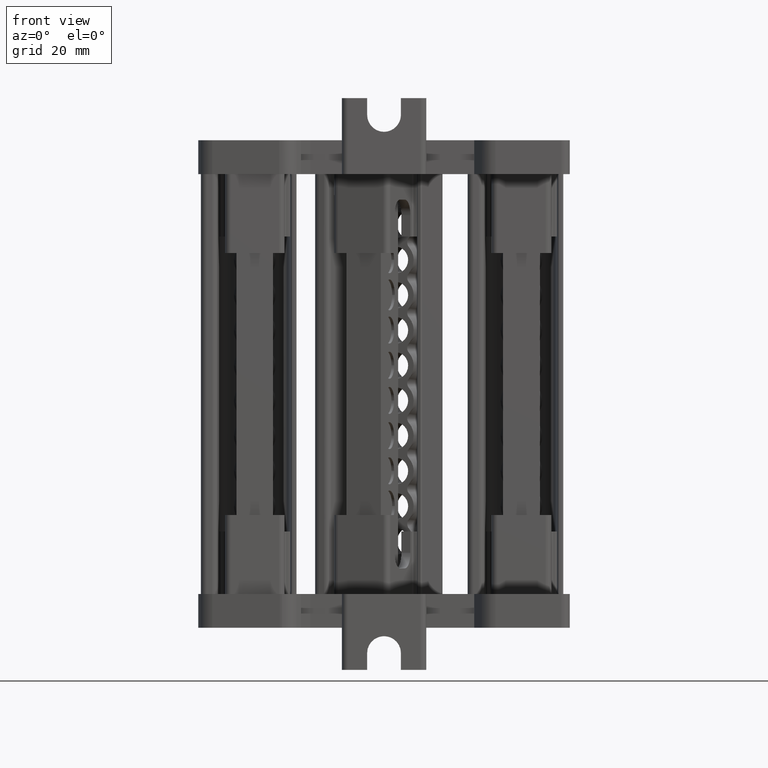
[diagram: clean part render]
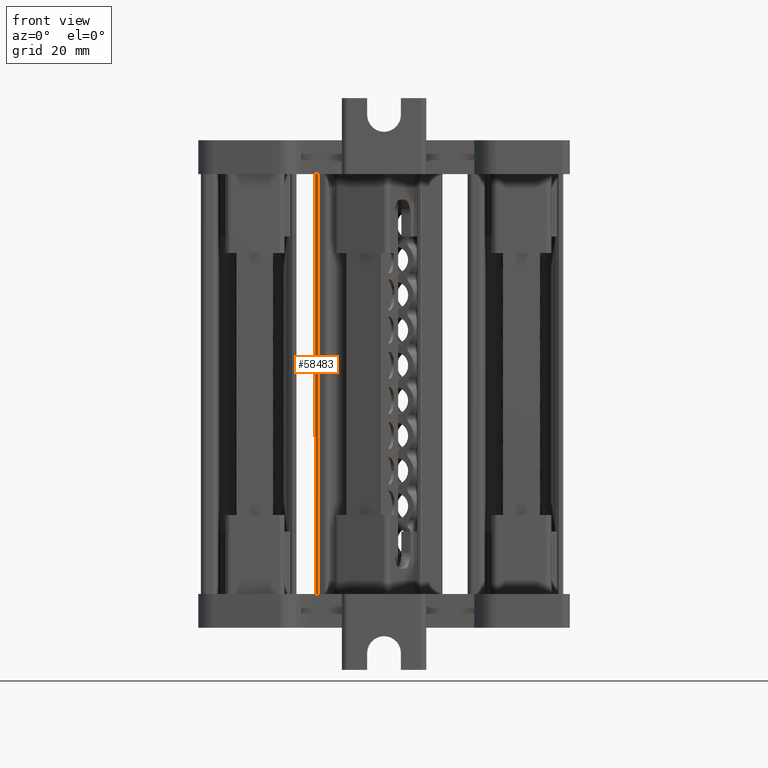
[diagram: same view with one face highlighted and labeled with its STEP entity id]
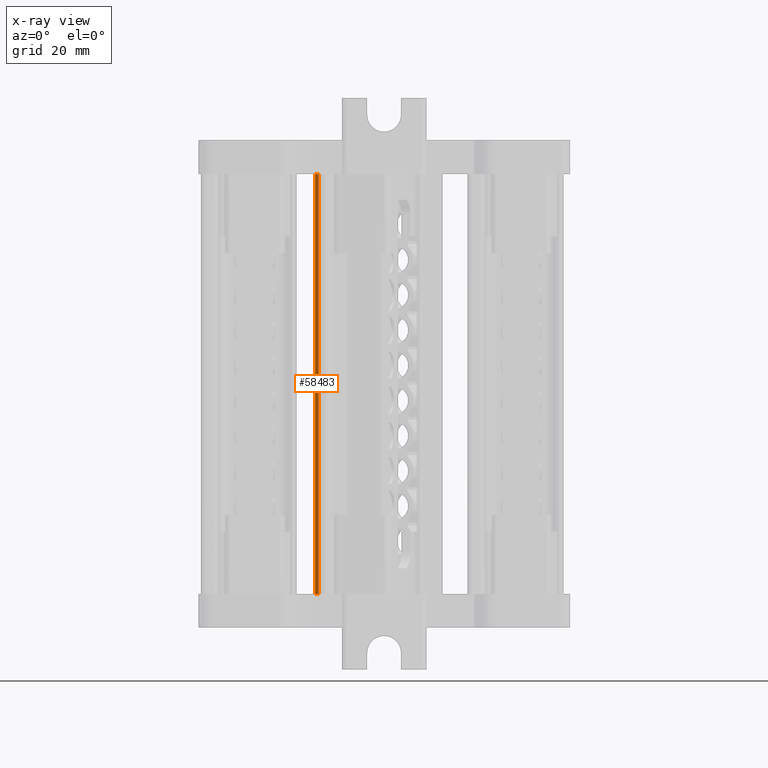
[diagram: x-ray of the same camera — body ghosted, the highlighted face saturated]
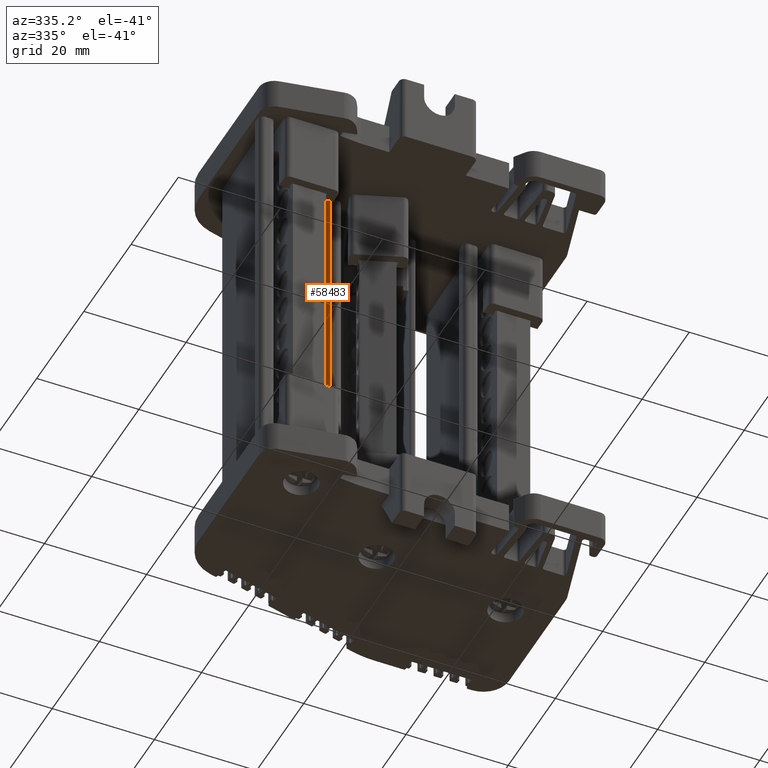
[diagram: same view with one face highlighted and labeled with its STEP entity id]
A machine part, front view. The second image highlights one B-rep face of the part: STEP entity #58483.
The next image is the same camera in x-ray: the body ghosted, the highlighted face saturated — about 0% of this face is hidden behind the body in this view.
A second angle (auxiliary view) of the same face is appended — the face is thin or edge-on in the first view.
In plain terms, the highlighted cylindrical surface (edge-blend (fillet) strip) has radius 1.0034 mm, axis along (-0, 0, -1).
Its self-contained STEP definition (entity closure, byte-faithful):
#11545 = CARTESIAN_POINT ( 'NONE',  ( -310.0798845158633400, 209.5913645827042700, 25.71293318655215600 ) ) ;
#11548 = CARTESIAN_POINT ( 'NONE',  ( -310.0798845158626600, 209.5913645827038700, 100.3119239351457400 ) ) ;
#14079 = CARTESIAN_POINT ( 'NONE',  ( -309.4802019671770900, 208.3053445662860400, 100.3119239351457400 ) ) ;
#14162 = CARTESIAN_POINT ( 'NONE',  ( -309.4802019671770900, 208.3053445662865800, 25.71293318655213500 ) ) ;
#27802 = AXIS2_PLACEMENT_3D ( 'NONE', #74199, #74168, #74171 ) ;
#31523 = B_SPLINE_CURVE_WITH_KNOTS ( 'NONE', 3,
 ( #89264, #89270, #89289, #89290, #89259, #89291 ),
 .UNSPECIFIED., .F., .F.,
 ( 4, 2, 4 ),
 ( 0.0000000000000000000, 0.5000000000000000000, 1.000000000000000000 ),
 .UNSPECIFIED. ) ;
#31540 = B_SPLINE_CURVE_WITH_KNOTS ( 'NONE', 3,
 ( #86636, #86607, #86663, #86689, #86674, #86693 ),
 .UNSPECIFIED., .F., .F.,
 ( 4, 2, 4 ),
 ( 0.0000000000000000000, 0.5000000000000000000, 1.000000000000000000 ),
 .UNSPECIFIED. ) ;
#32584 = VECTOR ( 'NONE', #89250, 1000.000000000000000 ) ;
#37991 = VECTOR ( 'NONE', #67764, 1000.000000000000000 ) ;
#44174 = EDGE_CURVE ( 'NONE', #91974, #91972, #67755, .T. ) ;
#54702 = EDGE_LOOP ( 'NONE', ( #58345, #58256, #58305, #58306 ) ) ;
#58256 = ORIENTED_EDGE ( 'NONE', *, *, #60023, .T. ) ;
#58305 = ORIENTED_EDGE ( 'NONE', *, *, #44174, .T. ) ;
#58306 = ORIENTED_EDGE ( 'NONE', *, *, #60126, .T. ) ;
#58345 = ORIENTED_EDGE ( 'NONE', *, *, #60111, .F. ) ;
#58483 = ADVANCED_FACE ( 'NONE', ( #74170 ), #74180, .T. ) ;
#60023 = EDGE_CURVE ( 'NONE', #92491, #91974, #31540, .T. ) ;
#60111 = EDGE_CURVE ( 'NONE', #92491, #92585, #89183, .T. ) ;
#60126 = EDGE_CURVE ( 'NONE', #91972, #92585, #31523, .T. ) ;
#67755 = LINE ( 'NONE', #67783, #37991 ) ;
#67764 = DIRECTION ( 'NONE',  ( -8.166714072959356300E-015, 9.405853051772095400E-015, -1.000000000000000000 ) ) ;
#67783 = CARTESIAN_POINT ( 'NONE',  ( -310.0798845158622600, 209.5913645827032500, 176.6548958728825800 ) ) ;
#74168 = DIRECTION ( 'NONE',  ( -8.166714072959356300E-015, 9.405853051772095400E-015, -1.000000000000000000 ) ) ;
#74170 = FACE_OUTER_BOUND ( 'NONE', #54702, .T. ) ;
#74171 = DIRECTION ( 'NONE',  ( 0.0000000000000000000, 1.000000000000000000, 0.0000000000000000000 ) ) ;
#74180 = CYLINDRICAL_SURFACE ( 'NONE', #27802, 1.003361012255010700 ) ;
#74199 = CARTESIAN_POINT ( 'NONE',  ( -309.1370332333100900, 209.2481958488373800, 176.6548958728825800 ) ) ;
#86607 = CARTESIAN_POINT ( 'NONE',  ( -309.7270398557344000, 208.3951859307237600, 100.3119239351457400 ) ) ;
#86636 = CARTESIAN_POINT ( 'NONE',  ( -309.4802019671770900, 208.3053445662860400, 100.3119239351457400 ) ) ;
#86663 = CARTESIAN_POINT ( 'NONE',  ( -309.9353734008336100, 208.5860880692246700, 100.3119239351457400 ) ) ;
#86674 = CARTESIAN_POINT ( 'NONE',  ( -310.1697258803008000, 209.3445266941461700, 100.3119239351457600 ) ) ;
#86689 = CARTESIAN_POINT ( 'NONE',  ( -310.1574000144895000, 209.0622244349808300, 100.3119239351457100 ) ) ;
#86693 = CARTESIAN_POINT ( 'NONE',  ( -310.0798845158626600, 209.5913645827038700, 100.3119239351457400 ) ) ;
#89183 = LINE ( 'NONE', #89233, #32584 ) ;
#89233 = CARTESIAN_POINT ( 'NONE',  ( -309.4802019671772700, 208.3053445662856700, 176.6548958728826300 ) ) ;
#89250 = DIRECTION ( 'NONE',  ( 2.067656873799533900E-015, 5.680858257042341300E-015, -1.000000000000000000 ) ) ;
#89259 = CARTESIAN_POINT ( 'NONE',  ( -309.7270398557349700, 208.3951859307244900, 25.71293318655215300 ) ) ;
#89264 = CARTESIAN_POINT ( 'NONE',  ( -310.0798845158633400, 209.5913645827042700, 25.71293318655215600 ) ) ;
#89270 = CARTESIAN_POINT ( 'NONE',  ( -310.1697258803014300, 209.3445266941468200, 25.71293318655216400 ) ) ;
#89289 = CARTESIAN_POINT ( 'NONE',  ( -310.1574000144902400, 209.0622244349815700, 25.71293318655217100 ) ) ;
#89290 = CARTESIAN_POINT ( 'NONE',  ( -309.9353734008342400, 208.5860880692254100, 25.71293318655215600 ) ) ;
#89291 = CARTESIAN_POINT ( 'NONE',  ( -309.4802019671770900, 208.3053445662865800, 25.71293318655213500 ) ) ;
#91972 = VERTEX_POINT ( 'NONE', #11545 ) ;
#91974 = VERTEX_POINT ( 'NONE', #11548 ) ;
#92491 = VERTEX_POINT ( 'NONE', #14079 ) ;
#92585 = VERTEX_POINT ( 'NONE', #14162 ) ;